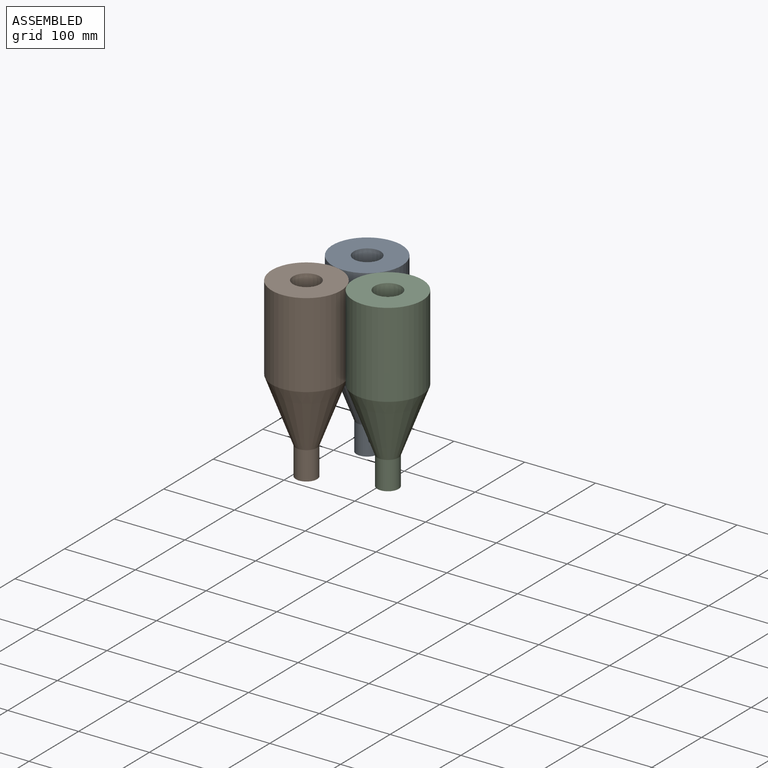
[diagram: assembled view]
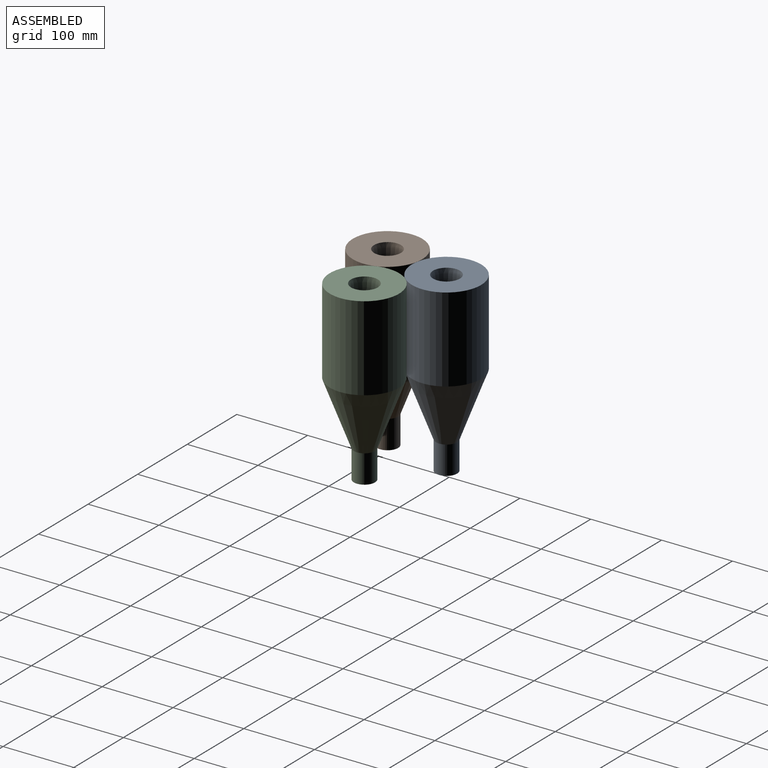
[diagram: assembled view, second angle]
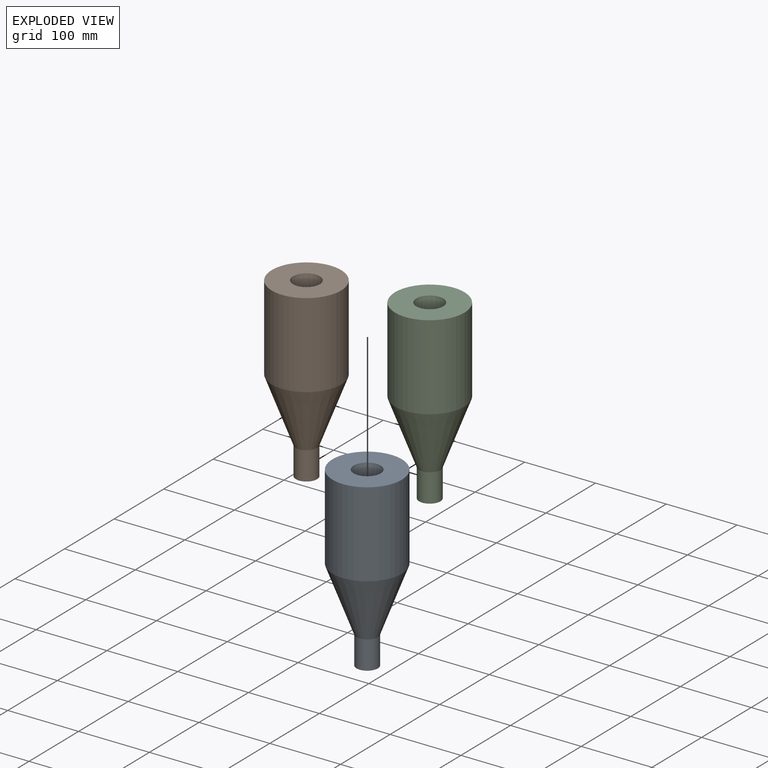
[diagram: exploded view]
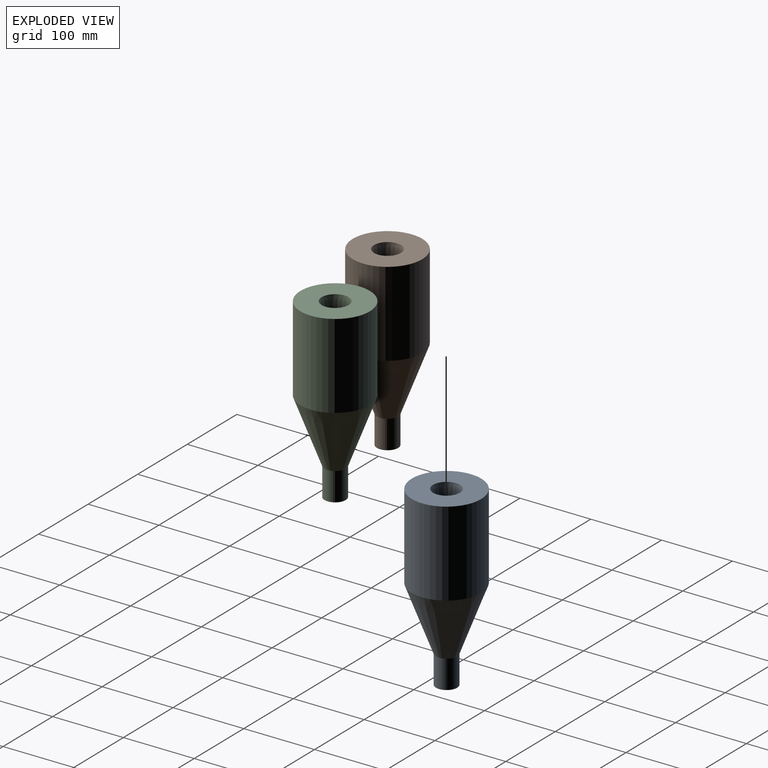
[diagram: exploded view, second angle]
ASSEMBLY  parts=3 mates=2
PART A: 13 faces, bbox 98x98x250 mm
  f0: plane 98x98mm, normal (0,0,-1), area 6408.8mm2, adj f1,f12
  f1: cone r=17mm half-angle=5.7deg, axis (0,0,-1), area 2273.2mm2, adj f0,f2
  f2: plane 34x34mm, normal (0,0,-1), area 907.9mm2, adj f1
  f3: plane 35.81x35.81mm, normal (0,0,1), area 1007.2mm2, adj f4
  f4: cone r=17.9mm half-angle=5.7deg, axis (0,0,-1), area 2387.5mm2, adj f3,f5
  f5: plane 96x96mm, normal (0,0,1), area 5993.5mm2, adj f4,f6
  f6: cylinder r=48mm len=118.82mm, axis (0,0,-1), area 35834.5mm2, adj f5,f7
  f7: cone r=48mm half-angle=20.7deg, axis (0,0,-1), area 18739.3mm2, adj f6,f8
  f8: cylinder r=14mm len=40.18mm, axis (0,0,-1), area 3534.6mm2, adj f7,f9
  f9: plane 30x30mm, normal (0,0,1), area 91.1mm2, adj f8,f10
  f10: cylinder r=15mm len=40mm, axis (0,0,-1), area 3769.9mm2, adj f9,f11
  f11: cone r=49mm half-angle=20.7deg, axis (0,0,-1), area 19343.8mm2, adj f10,f12
  f12: cylinder r=49mm len=120mm, axis (0,0,-1), area 36945.1mm2, adj f0,f11
PART B: same geometry as A
PART C: same geometry as A
PLACE A rot(axis=(0.12,0.99,0),180deg) t=(-123.42,130.04,355.28)mm
PLACE B rot(axis=(0.02,1,0),180deg) t=(-141.82,33.79,355.28)mm
PLACE C rot(axis=(0,1,0),180deg) t=(-49.26,65.99,355.28)mm
MATE planar A.f1 <-> B.f1  axis (0,0,1) through (-123.42,130.04,355.28)mm
MATE planar B.f1 <-> C.f1  axis (0,0,1) through (-141.82,33.79,355.28)mm
